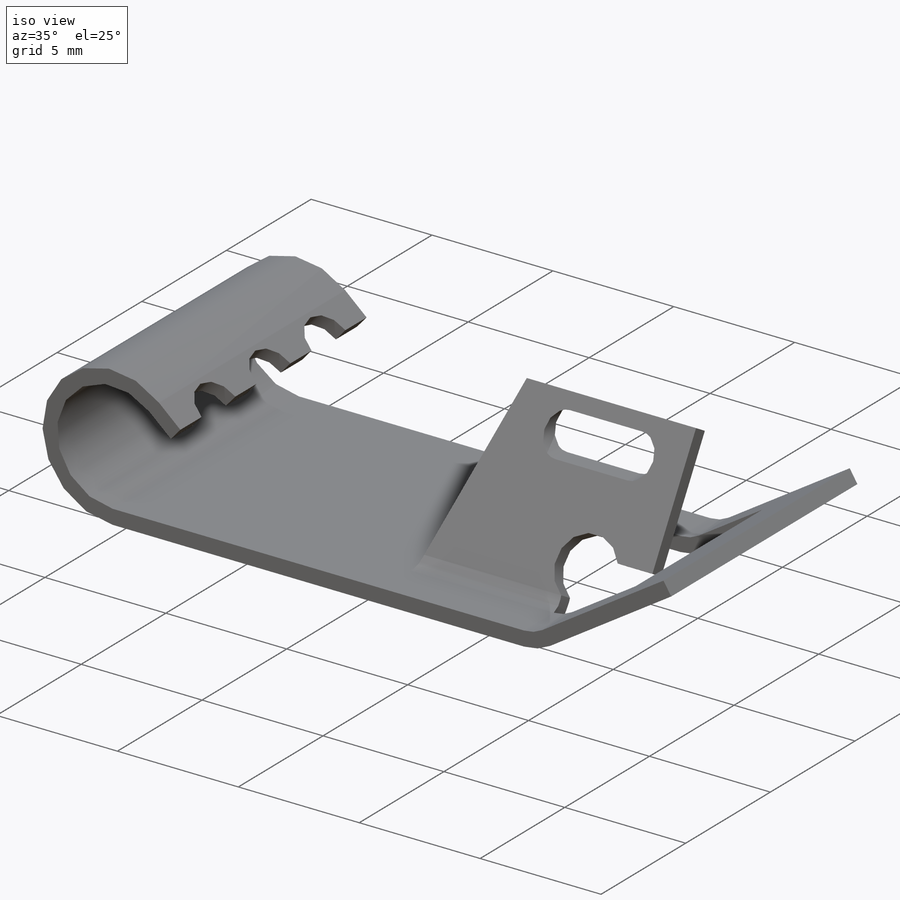
[diagram: iso view]
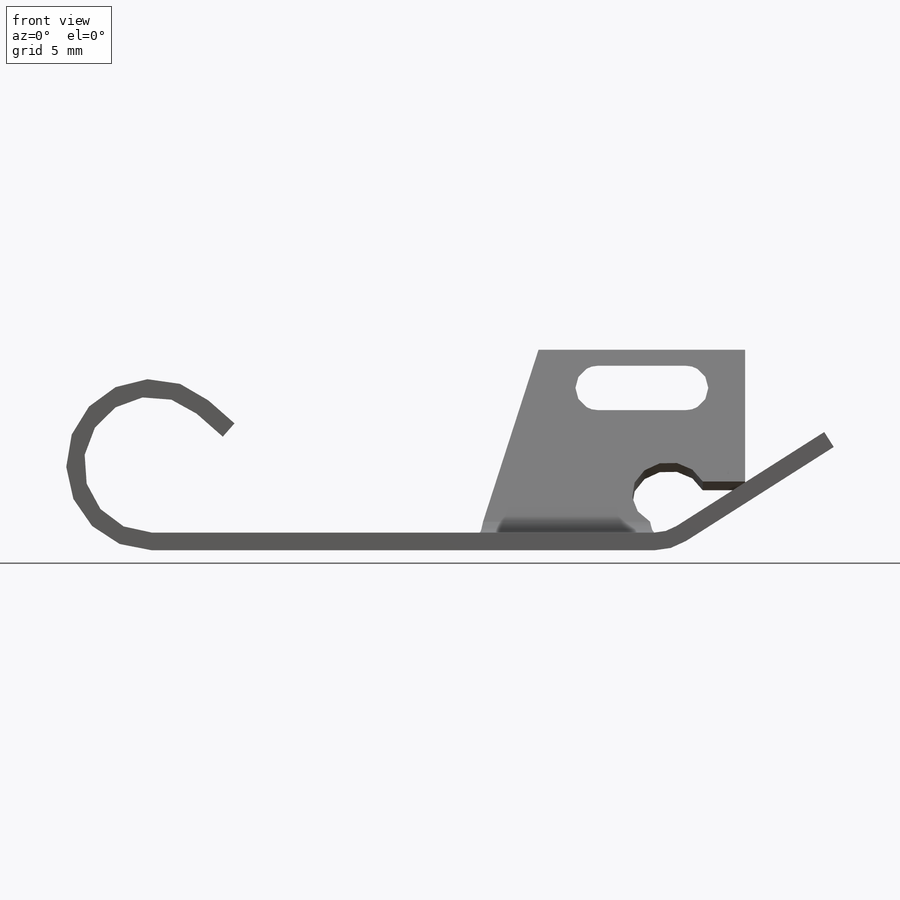
[diagram: front view]
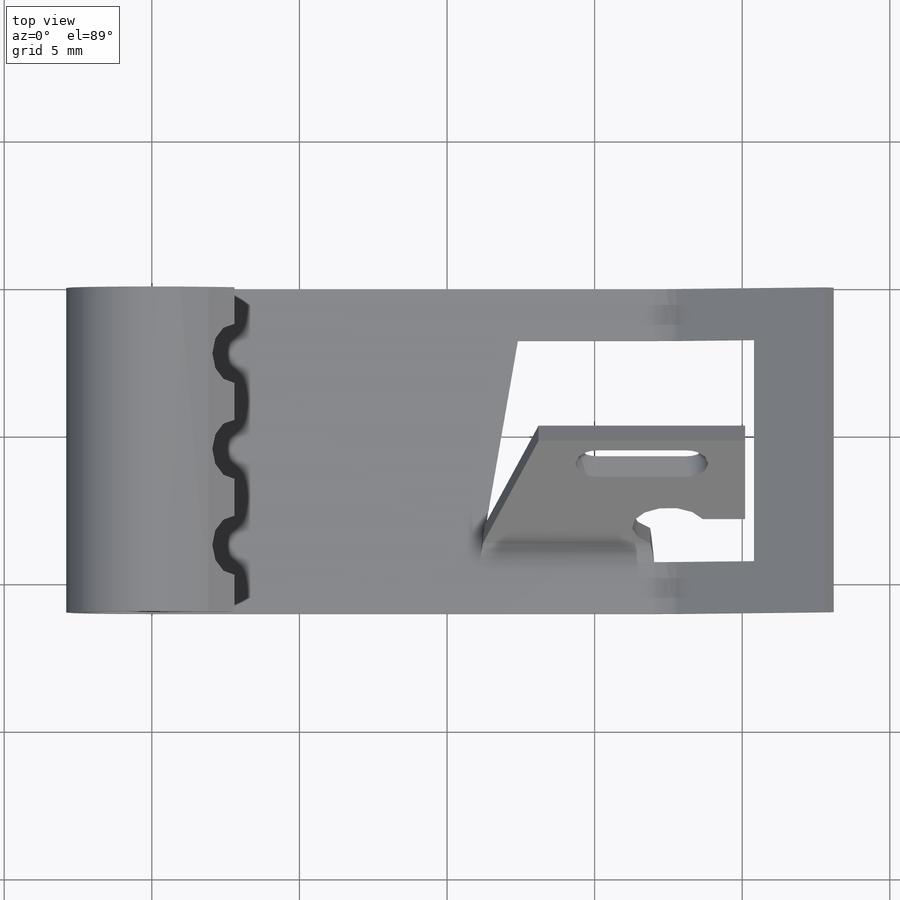
[diagram: top view]
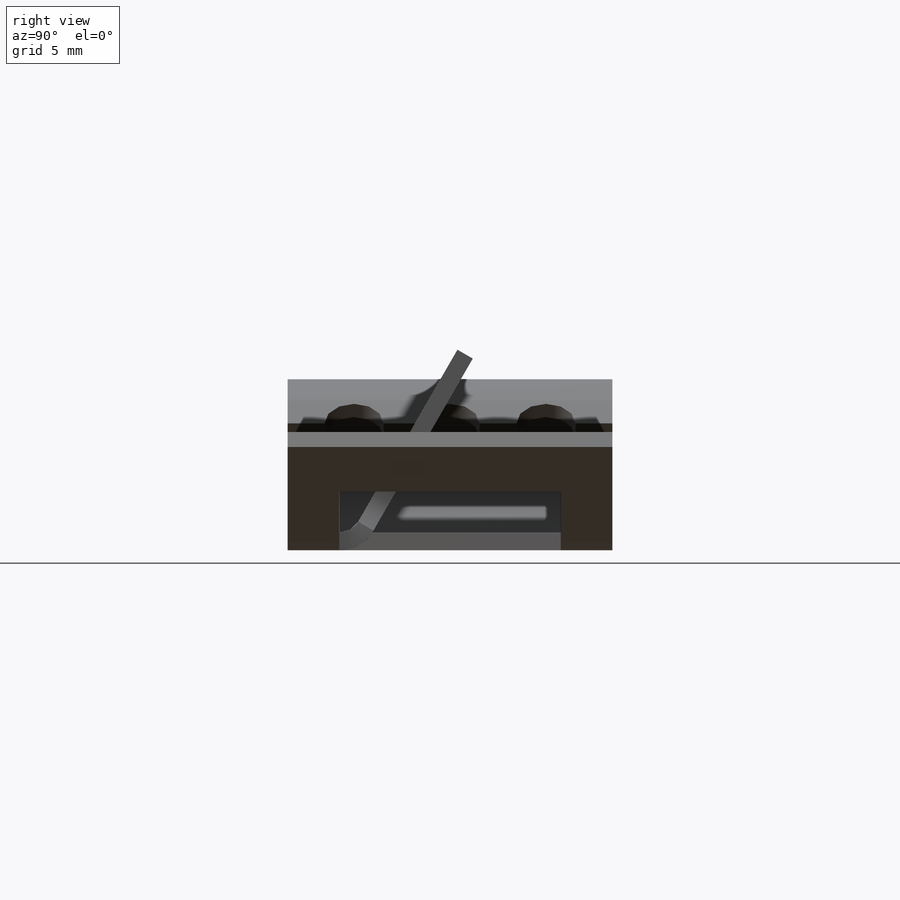
[diagram: right view]
SOLIDWORKS PART (.sldprt)
format: sldprt  version: not decoded by parser v0  size: 395,264 bytes
history: native  units: mm
features: sheet_metal_op x7, plane x3, cut_extrude x3, material x1, sketch x1 + 18 further entries (+10 scaffold rows collapsed)
feature tree (43):
  scaffold x10  (default folders/planes/origin — collapsed)
  material  "Matériau <non spécifié>"
  plane  "Face"
  plane  "Dessus"
  plane  "Droite"
  sketch  "Esquisse1"  dims[c1.D1=5.8mm c1.D7=2.0mm c1.D2=2.8mm c1.D3=4.3mm c1.D4=23.1mm c1.D5=5.5mm c1.D6=3.5mm c2.D1=0.7366mm c2.D2=0.5 c2.D3=0.0mm c2.D6=500.0mm]
  sheet_metal_op  "Tôle de base pliée1"
  sheet_metal_op  "Pli de base2"  Esquisse6=0
  cut_extrude  "Enlèv. mat.-Extru.1"  Depth=10mm Esquisse9=0 Esquisse10=0 2=2mm
  cut_extrude  "Enlèv. mat.-Extru.2"  Depth=0 Esquisse11=0
  cut_extrude  "Enlèv. mat.-Extru.5"  Depth=0 Lignes de pliage1=0 Cube de visualisation1=0
  sheet_metal_op  "Tôlerie1"
  "Etat déplié1"  Lignes de pliage2=0 Cube de visualisation2=0
  "Transformation de l'esquisse1"
  "Dépliage-<Pli de base2>1"
  sheet_metal_op  "Tôlerie2"
  "Etat déplié1"  Lignes de pliage2=0 Cube de visualisation2=0
  "Dépliage-<Pli de base1>1"
  "Dépliage-<Pli de base2>1"
  sheet_metal_op  "Tôlerie3"
  "Etat déplié1"  Lignes de pliage2=0 Cube de visualisation2=0
  "Dépliage-<Pli de base1>1"
  "Dépliage-<Pli de base2>1"
  "Dépliage-<Pli d'arête1>1"
  sheet_metal_op  "Tôlerie4"
  "Etat déplié1"  Lignes de pliage2=0 Cube de visualisation2=0
  "Dépliage-<Pli de base1>1"
  "Dépliage-<Pli de base2>1"
  "Dépliage-<Pli d'arête1>1"
  sheet_metal_op  "Tôlerie5"
  "Etat déplié1"  Lignes de pliage2=0 Cube de visualisation2=0
  "Dépliage-<Pli de base1>1"
  "Dépliage-<Pli de base2>1"
  "Dépliage-<Pli d'arête1>1"
decode coverage: 5 of 11 modeling features carry decoded parameters; 18 rows unclassified (native names shown)
note: suppression state not decoded; provenance and decode notes live in map.json
